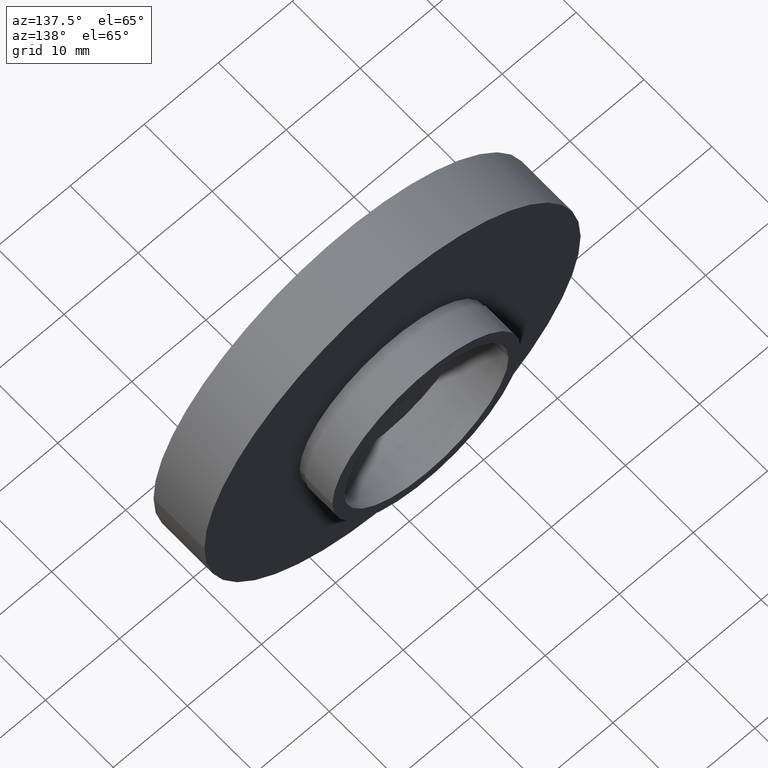
[diagram: clean part render]
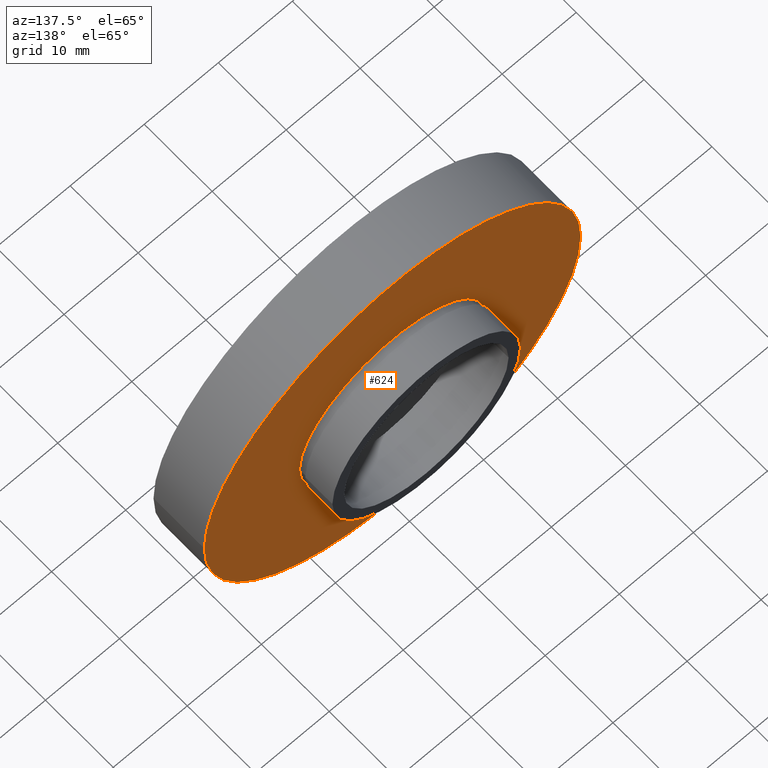
[diagram: same view with one face highlighted and labeled with its STEP entity id]
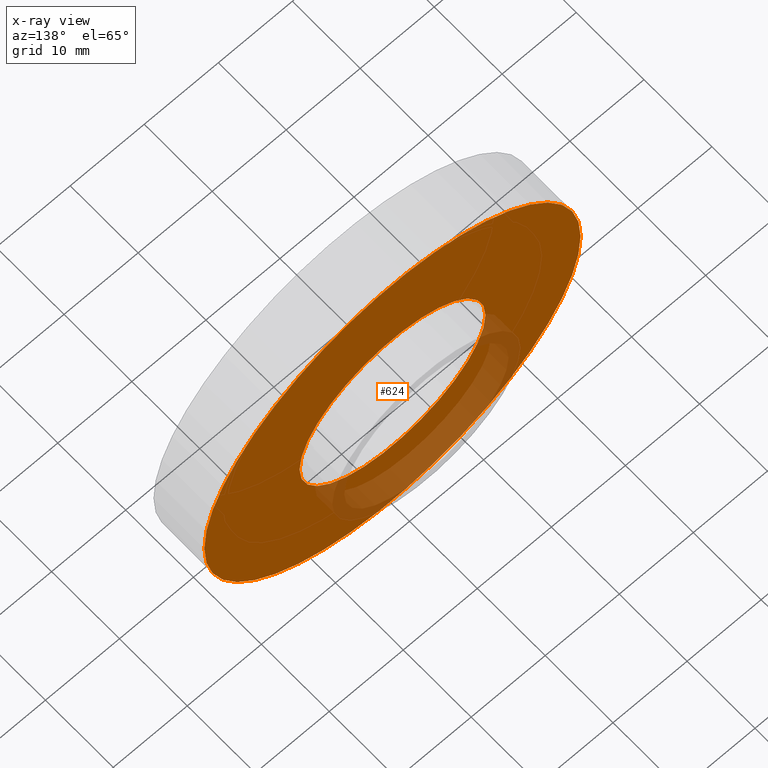
[diagram: x-ray of the same camera — body ghosted, the highlighted face saturated]
A machine part, auxiliary view. The second image highlights one B-rep face of the part: STEP entity #624.
The next image is the same camera in x-ray: the body ghosted, the highlighted face saturated — about 17% of this face is hidden behind the body in this view.
In plain terms, the highlighted planar face has unit normal (0, -1, 0).
Its self-contained STEP definition (entity closure, byte-faithful):
#11 = ORIENTED_EDGE ( 'NONE', *, *, #525, .F. ) ;
#14 = CARTESIAN_POINT ( 'NONE',  ( -25.39999999999999900, 7.499999999999992900, 0.0000000000000000000 ) ) ;
#38 = PLANE ( 'NONE',  #70 ) ;
#45 = CARTESIAN_POINT ( 'NONE',  ( 25.39999999999999900, 7.500000000000000000, 3.110602869834276900E-015 ) ) ;
#70 = AXIS2_PLACEMENT_3D ( 'NONE', #149, #119, #302 ) ;
#78 = VERTEX_POINT ( 'NONE', #359 ) ;
#79 = EDGE_CURVE ( 'NONE', #494, #402, #156, .T. ) ;
#103 = EDGE_CURVE ( 'NONE', #402, #494, #417, .T. ) ;
#114 = EDGE_LOOP ( 'NONE', ( #341, #573 ) ) ;
#115 = AXIS2_PLACEMENT_3D ( 'NONE', #176, #531, #262 ) ;
#119 = DIRECTION ( 'NONE',  ( 1.224646799147351000E-016, -1.000000000000000000, 0.0000000000000000000 ) ) ;
#133 = EDGE_LOOP ( 'NONE', ( #233, #11 ) ) ;
#149 = CARTESIAN_POINT ( 'NONE',  ( 12.55000000000000200, 7.499999999999999100, 0.0000000000000000000 ) ) ;
#156 = CIRCLE ( 'NONE', #507, 25.39999999999999900 ) ;
#161 = AXIS2_PLACEMENT_3D ( 'NONE', #422, #166, #379 ) ;
#166 = DIRECTION ( 'NONE',  ( -1.224646799147351000E-016, 1.000000000000000000, -0.0000000000000000000 ) ) ;
#176 = CARTESIAN_POINT ( 'NONE',  ( 1.149455719078122700E-015, 7.499999999999998200, 0.0000000000000000000 ) ) ;
#233 = ORIENTED_EDGE ( 'NONE', *, *, #580, .F. ) ;
#259 = VERTEX_POINT ( 'NONE', #533 ) ;
#262 = DIRECTION ( 'NONE',  ( -1.000000000000000000, -1.382249781654826400E-016, 0.0000000000000000000 ) ) ;
#302 = DIRECTION ( 'NONE',  ( 1.000000000000000000, 1.224646799147351000E-016, 0.0000000000000000000 ) ) ;
#341 = ORIENTED_EDGE ( 'NONE', *, *, #79, .T. ) ;
#359 = CARTESIAN_POINT ( 'NONE',  ( 12.55000000000000200, 7.500000000000000000, 1.536931732929928400E-015 ) ) ;
#379 = DIRECTION ( 'NONE',  ( -1.000000000000000000, -1.382249781654826400E-016, 0.0000000000000000000 ) ) ;
#385 = DIRECTION ( 'NONE',  ( -1.000000000000000000, -1.365923996832131600E-016, 0.0000000000000000000 ) ) ;
#386 = DIRECTION ( 'NONE',  ( -1.224646799147351000E-016, 1.000000000000000000, -0.0000000000000000000 ) ) ;
#392 = CARTESIAN_POINT ( 'NONE',  ( 1.149455719078123100E-015, 7.499999999999996400, 0.0000000000000000000 ) ) ;
#396 = FACE_OUTER_BOUND ( 'NONE', #114, .T. ) ;
#402 = VERTEX_POINT ( 'NONE', #45 ) ;
#406 = FACE_BOUND ( 'NONE', #133, .T. ) ;
#417 = CIRCLE ( 'NONE', #490, 25.39999999999999900 ) ;
#422 = CARTESIAN_POINT ( 'NONE',  ( 1.149455719078122700E-015, 7.499999999999998200, 0.0000000000000000000 ) ) ;
#441 = CIRCLE ( 'NONE', #115, 12.55000000000000100 ) ;
#490 = AXIS2_PLACEMENT_3D ( 'NONE', #392, #386, #385 ) ;
#494 = VERTEX_POINT ( 'NONE', #14 ) ;
#507 = AXIS2_PLACEMENT_3D ( 'NONE', #555, #551, #547 ) ;
#525 = EDGE_CURVE ( 'NONE', #78, #259, #622, .T. ) ;
#531 = DIRECTION ( 'NONE',  ( -1.224646799147351000E-016, 1.000000000000000000, -0.0000000000000000000 ) ) ;
#533 = CARTESIAN_POINT ( 'NONE',  ( -12.54999999999999900, 7.499999999999996400, 0.0000000000000000000 ) ) ;
#547 = DIRECTION ( 'NONE',  ( -1.000000000000000000, -1.365923996832131600E-016, 0.0000000000000000000 ) ) ;
#551 = DIRECTION ( 'NONE',  ( -1.224646799147351000E-016, 1.000000000000000000, -0.0000000000000000000 ) ) ;
#555 = CARTESIAN_POINT ( 'NONE',  ( 1.149455719078123100E-015, 7.499999999999996400, 0.0000000000000000000 ) ) ;
#573 = ORIENTED_EDGE ( 'NONE', *, *, #103, .T. ) ;
#580 = EDGE_CURVE ( 'NONE', #259, #78, #441, .T. ) ;
#622 = CIRCLE ( 'NONE', #161, 12.55000000000000100 ) ;
#624 = ADVANCED_FACE ( 'NONE', ( #406, #396 ), #38, .F. ) ;